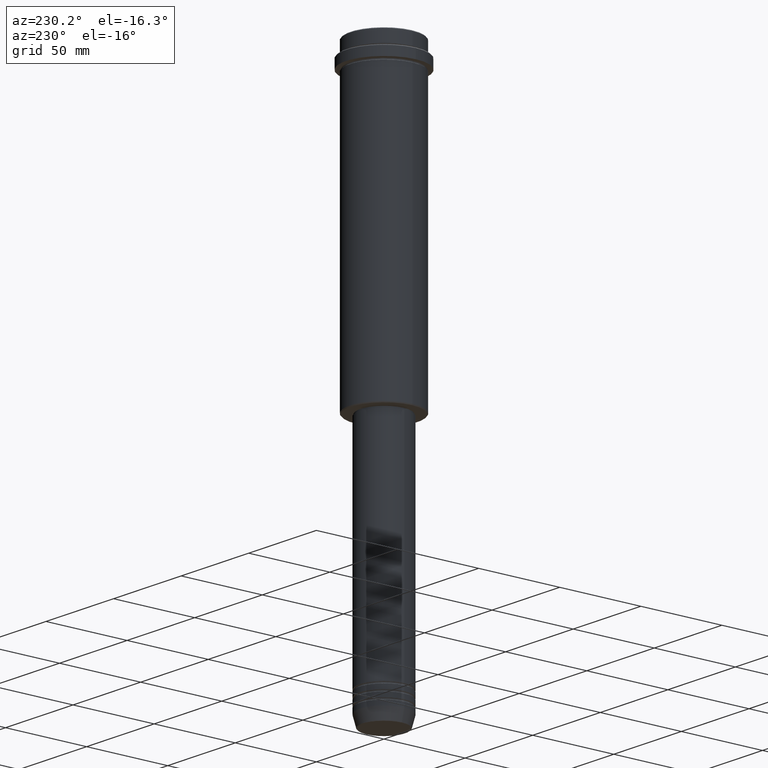
[diagram: clean part render]
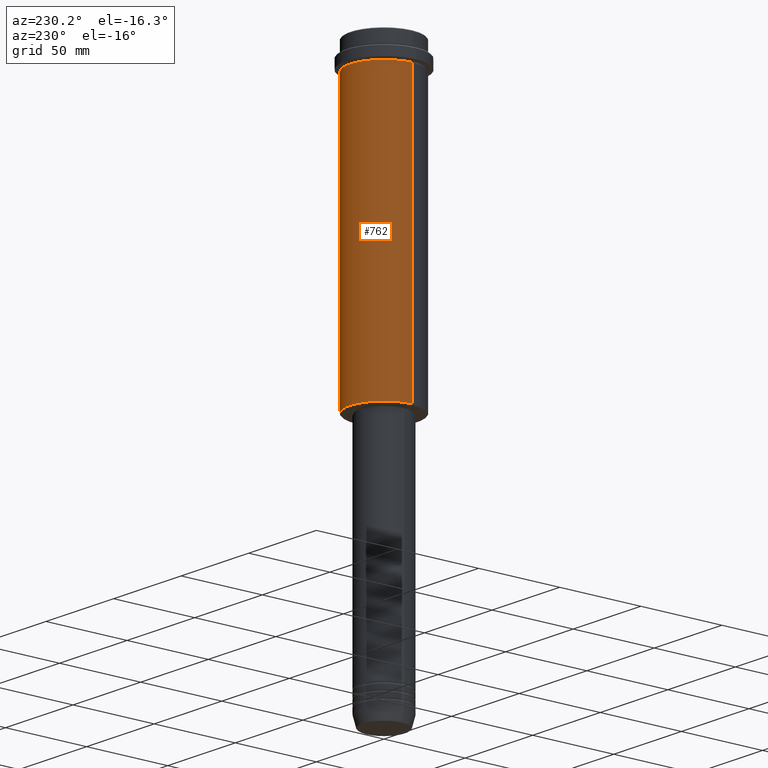
[diagram: same view with one face highlighted and labeled with its STEP entity id]
A machine part, auxiliary view. The second image highlights one B-rep face of the part: STEP entity #762.
In plain terms, the highlighted cylindrical surface (partial cylindrical patch) has radius 21 mm, axis along (-0, -0, 1).
Its self-contained STEP definition (entity closure, byte-faithful):
#4 = DIRECTION ( 'NONE',  ( -0.000000000000000000, -0.000000000000000000, 1.000000000000000000 ) ) ;
#14 = VECTOR ( 'NONE', #223, 1000.000000000000000 ) ;
#77 = AXIS2_PLACEMENT_3D ( 'NONE', #1067, #4, #988 ) ;
#83 = AXIS2_PLACEMENT_3D ( 'NONE', #235, #672, #128 ) ;
#87 = LINE ( 'NONE', #625, #792 ) ;
#127 = EDGE_CURVE ( 'NONE', #801, #1340, #944, .T. ) ;
#128 = DIRECTION ( 'NONE',  ( 1.000000000000000000, 0.000000000000000000, 0.000000000000000000 ) ) ;
#217 = AXIS2_PLACEMENT_3D ( 'NONE', #452, #306, #1312 ) ;
#223 = DIRECTION ( 'NONE',  ( -0.000000000000000000, -0.000000000000000000, 1.000000000000000000 ) ) ;
#235 = CARTESIAN_POINT ( 'NONE',  ( 0.000000000000000000, 0.000000000000000000, -16.00000000000000355 ) ) ;
#271 = CIRCLE ( 'NONE', #83, 20.99999999999999645 ) ;
#306 = DIRECTION ( 'NONE',  ( -0.000000000000000000, -0.000000000000000000, 1.000000000000000000 ) ) ;
#316 = CARTESIAN_POINT ( 'NONE',  ( -20.99999999999999645, 2.571758278209441267E-15, 0.000000000000000000 ) ) ;
#363 = EDGE_CURVE ( 'NONE', #1340, #396, #890, .T. ) ;
#396 = VERTEX_POINT ( 'NONE', #979 ) ;
#430 = CARTESIAN_POINT ( 'NONE',  ( 20.99999999999999645, 0.000000000000000000, -184.5000000000001137 ) ) ;
#452 = CARTESIAN_POINT ( 'NONE',  ( 0.000000000000000000, 0.000000000000000000, 0.000000000000000000 ) ) ;
#512 = DIRECTION ( 'NONE',  ( -0.000000000000000000, -0.000000000000000000, 1.000000000000000000 ) ) ;
#601 = EDGE_CURVE ( 'NONE', #801, #935, #87, .T. ) ;
#625 = CARTESIAN_POINT ( 'NONE',  ( 20.99999999999999645, 0.000000000000000000, 0.000000000000000000 ) ) ;
#638 = ORIENTED_EDGE ( 'NONE', *, *, #601, .F. ) ;
#672 = DIRECTION ( 'NONE',  ( -0.000000000000000000, -0.000000000000000000, 1.000000000000000000 ) ) ;
#714 = EDGE_LOOP ( 'NONE', ( #1208, #1280, #1169, #638 ) ) ;
#762 = ADVANCED_FACE ( 'NONE', ( #984 ), #1074, .T. ) ;
#792 = VECTOR ( 'NONE', #512, 1000.000000000000000 ) ;
#801 = VERTEX_POINT ( 'NONE', #430 ) ;
#810 = CARTESIAN_POINT ( 'NONE',  ( 20.99999999999999645, 0.000000000000000000, -16.00000000000000355 ) ) ;
#890 = LINE ( 'NONE', #316, #14 ) ;
#935 = VERTEX_POINT ( 'NONE', #810 ) ;
#938 = CARTESIAN_POINT ( 'NONE',  ( -20.99999999999999645, 2.571758278209441267E-15, -184.5000000000001137 ) ) ;
#944 = CIRCLE ( 'NONE', #77, 20.99999999999999645 ) ;
#973 = EDGE_CURVE ( 'NONE', #935, #396, #271, .T. ) ;
#979 = CARTESIAN_POINT ( 'NONE',  ( -20.99999999999999645, 2.571758278209441267E-15, -16.00000000000000355 ) ) ;
#984 = FACE_OUTER_BOUND ( 'NONE', #714, .T. ) ;
#988 = DIRECTION ( 'NONE',  ( -1.000000000000000000, 0.000000000000000000, 0.000000000000000000 ) ) ;
#1067 = CARTESIAN_POINT ( 'NONE',  ( 0.000000000000000000, 0.000000000000000000, -184.5000000000001137 ) ) ;
#1074 = CYLINDRICAL_SURFACE ( 'NONE', #217, 20.99999999999999645 ) ;
#1169 = ORIENTED_EDGE ( 'NONE', *, *, #973, .F. ) ;
#1208 = ORIENTED_EDGE ( 'NONE', *, *, #127, .T. ) ;
#1280 = ORIENTED_EDGE ( 'NONE', *, *, #363, .T. ) ;
#1312 = DIRECTION ( 'NONE',  ( 1.000000000000000000, 0.000000000000000000, 0.000000000000000000 ) ) ;
#1340 = VERTEX_POINT ( 'NONE', #938 ) ;